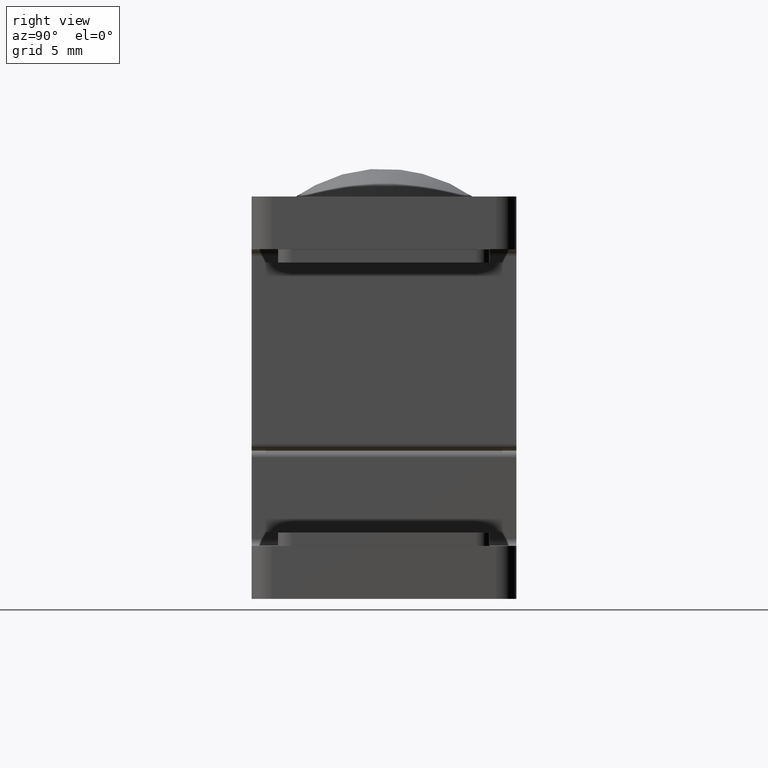
[diagram: clean part render]
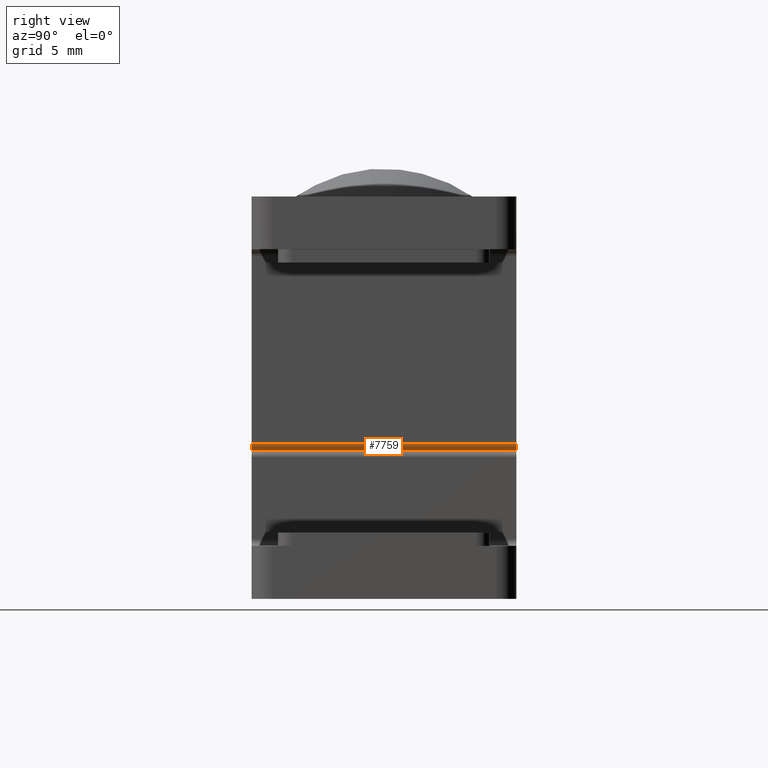
[diagram: same view with one face highlighted and labeled with its STEP entity id]
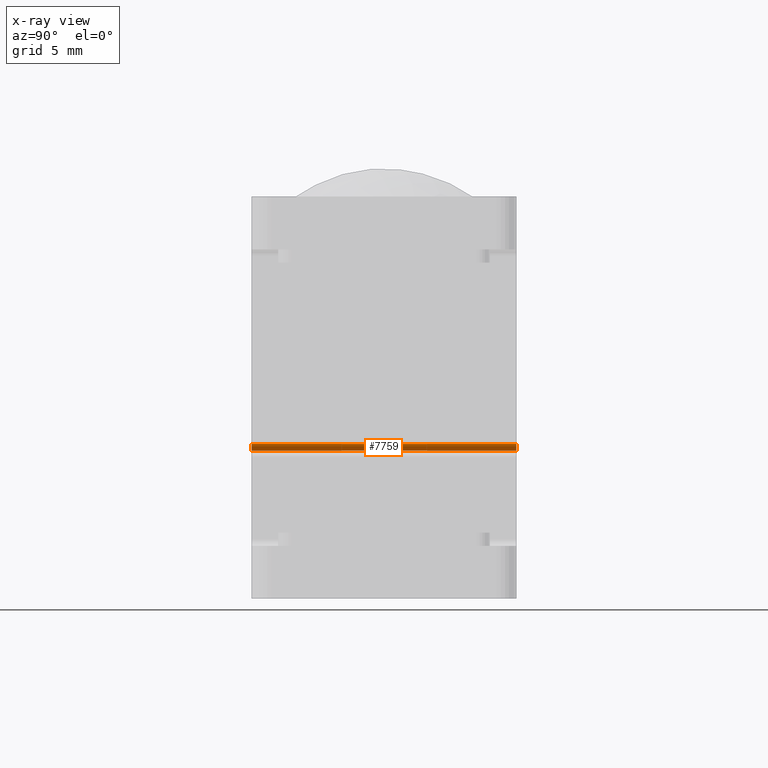
[diagram: x-ray of the same camera — body ghosted, the highlighted face saturated]
A machine part, right view. The second image highlights one B-rep face of the part: STEP entity #7759.
The next image is the same camera in x-ray: the body ghosted, the highlighted face saturated — about 0% of this face is hidden behind the body in this view.
In plain terms, the highlighted cylindrical surface (edge-blend (fillet) strip) has radius 0.5 mm, axis along (0, 1, 0).
Its self-contained STEP definition (entity closure, byte-faithful):
#362 = EDGE_CURVE ( 'NONE', #25765, #28282, #24470, .T. ) ;
#1989 = AXIS2_PLACEMENT_3D ( 'NONE', #6191, #27199, #32259 ) ;
#4447 = DIRECTION ( 'NONE',  ( 0.000000000000000000, 0.000000000000000000, 1.000000000000000000 ) ) ;
#4790 = CARTESIAN_POINT ( 'NONE',  ( 3.500000000000000000, -9.999999999999998224, -19.20000000000000284 ) ) ;
#5348 = AXIS2_PLACEMENT_3D ( 'NONE', #20811, #10041, #20707 ) ;
#6191 = CARTESIAN_POINT ( 'NONE',  ( 3.500000000000000000, 9.999999999999998224, -18.70000000000000284 ) ) ;
#6630 = CARTESIAN_POINT ( 'NONE',  ( 3.500000000000000000, 9.999999999999998224, -19.20000000000000284 ) ) ;
#7063 = EDGE_CURVE ( 'NONE', #24092, #25765, #17215, .T. ) ;
#7759 = ADVANCED_FACE ( 'NONE', ( #8609 ), #32459, .T. ) ;
#8280 = ORIENTED_EDGE ( 'NONE', *, *, #7063, .F. ) ;
#8351 = EDGE_CURVE ( 'NONE', #22693, #24092, #25028, .T. ) ;
#8609 = FACE_OUTER_BOUND ( 'NONE', #17799, .T. ) ;
#10041 = DIRECTION ( 'NONE',  ( 0.000000000000000000, -1.000000000000000000, 0.000000000000000000 ) ) ;
#11989 = CARTESIAN_POINT ( 'NONE',  ( 4.000000000000000000, 9.999999999999998224, -18.70000000000000284 ) ) ;
#13256 = VECTOR ( 'NONE', #32137, 1000.000000000000000 ) ;
#13700 = CARTESIAN_POINT ( 'NONE',  ( 3.500000000000000000, -9.999999999999998224, -19.20000000000000284 ) ) ;
#17215 = LINE ( 'NONE', #19041, #32054 ) ;
#17251 = EDGE_CURVE ( 'NONE', #28282, #22693, #26893, .T. ) ;
#17799 = EDGE_LOOP ( 'NONE', ( #22104, #8280, #21107, #19078 ) ) ;
#19041 = CARTESIAN_POINT ( 'NONE',  ( 4.000000000000000000, 9.999999999999998224, -18.70000000000000284 ) ) ;
#19078 = ORIENTED_EDGE ( 'NONE', *, *, #17251, .F. ) ;
#20135 = DIRECTION ( 'NONE',  ( 0.000000000000000000, 1.000000000000000000, 0.000000000000000000 ) ) ;
#20593 = CARTESIAN_POINT ( 'NONE',  ( 3.500000000000000000, 0.000000000000000000, -18.70000000000000284 ) ) ;
#20707 = DIRECTION ( 'NONE',  ( 0.000000000000000000, 0.000000000000000000, -1.000000000000000000 ) ) ;
#20811 = CARTESIAN_POINT ( 'NONE',  ( 3.500000000000000000, -10.00000000000000355, -18.70000000000000284 ) ) ;
#21107 = ORIENTED_EDGE ( 'NONE', *, *, #8351, .F. ) ;
#22104 = ORIENTED_EDGE ( 'NONE', *, *, #362, .F. ) ;
#22693 = VERTEX_POINT ( 'NONE', #4790 ) ;
#24092 = VERTEX_POINT ( 'NONE', #32028 ) ;
#24470 = CIRCLE ( 'NONE', #1989, 0.5000000000000004441 ) ;
#25028 = CIRCLE ( 'NONE', #5348, 0.5000000000000004441 ) ;
#25765 = VERTEX_POINT ( 'NONE', #11989 ) ;
#26893 = LINE ( 'NONE', #13700, #13256 ) ;
#26977 = DIRECTION ( 'NONE',  ( -0.000000000000000000, 1.000000000000000000, -0.000000000000000000 ) ) ;
#27199 = DIRECTION ( 'NONE',  ( 0.000000000000000000, 1.000000000000000000, 0.000000000000000000 ) ) ;
#27341 = AXIS2_PLACEMENT_3D ( 'NONE', #20593, #20135, #4447 ) ;
#28282 = VERTEX_POINT ( 'NONE', #6630 ) ;
#32028 = CARTESIAN_POINT ( 'NONE',  ( 4.000000000000000000, -9.999999999999998224, -18.70000000000000284 ) ) ;
#32054 = VECTOR ( 'NONE', #26977, 1000.000000000000000 ) ;
#32137 = DIRECTION ( 'NONE',  ( 0.000000000000000000, -1.000000000000000000, 0.000000000000000000 ) ) ;
#32259 = DIRECTION ( 'NONE',  ( 0.000000000000000000, 0.000000000000000000, 1.000000000000000000 ) ) ;
#32459 = CYLINDRICAL_SURFACE ( 'NONE', #27341, 0.5000000000000004441 ) ;